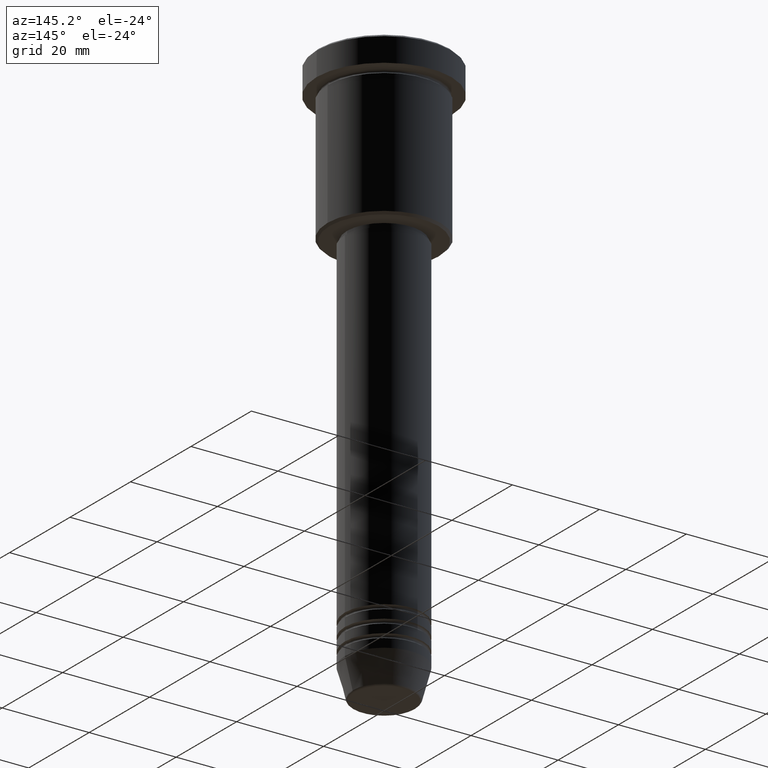
[diagram: clean part render]
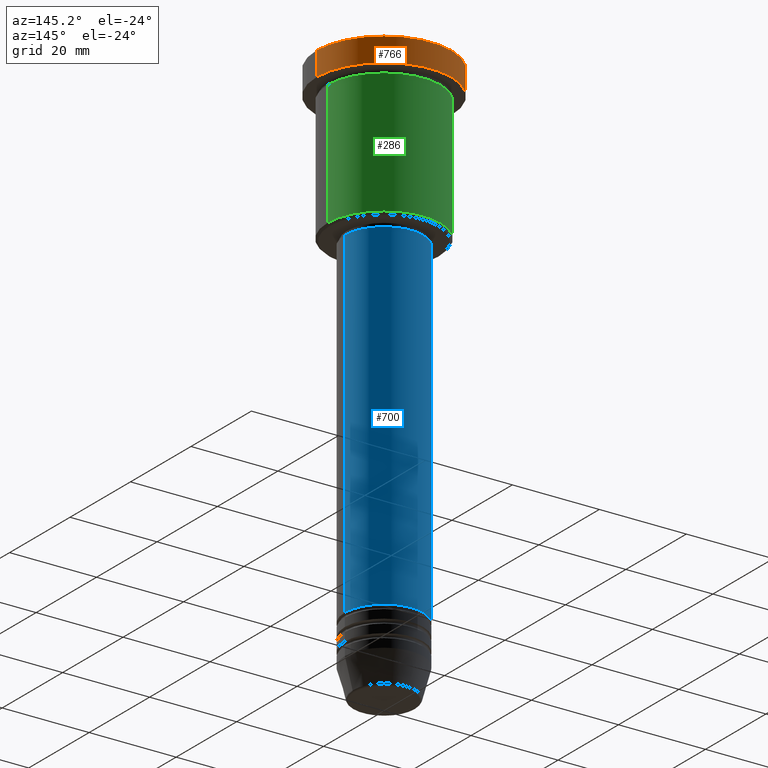
[diagram: same view with three faces highlighted in distinct colors, each labeled with its STEP entity id]
A machine part, auxiliary view with three faces highlighted in distinct colors.
Their STEP definitions:

[orange] entity #766 — the highlighted cylindrical surface (partial cylindrical patch) has radius 15.5 mm, axis along (-0, -0, 1).
#1 = EDGE_CURVE ( 'NONE', #402, #151, #393, .T. ) ;
#6 = AXIS2_PLACEMENT_3D ( 'NONE', #35, #400, #753 ) ;
#35 = CARTESIAN_POINT ( 'NONE',  ( 0.000000000000000000, 0.000000000000000000, -5.999999999999995559 ) ) ;
#45 = AXIS2_PLACEMENT_3D ( 'NONE', #165, #238, #687 ) ;
#89 = VECTOR ( 'NONE', #440, 1000.000000000000000 ) ;
#92 = CARTESIAN_POINT ( 'NONE',  ( -15.50000000000000000, 1.898202538678397557E-15, -5.999999999999995559 ) ) ;
#151 = VERTEX_POINT ( 'NONE', #546 ) ;
#165 = CARTESIAN_POINT ( 'NONE',  ( 0.000000000000000000, 0.000000000000000000, 0.000000000000000000 ) ) ;
#187 = ORIENTED_EDGE ( 'NONE', *, *, #638, .T. ) ;
#238 = DIRECTION ( 'NONE',  ( -0.000000000000000000, -0.000000000000000000, 1.000000000000000000 ) ) ;
#309 = CARTESIAN_POINT ( 'NONE',  ( 0.000000000000000000, 0.000000000000000000, -0.4999999999999709677 ) ) ;
#333 = VECTOR ( 'NONE', #423, 1000.000000000000000 ) ;
#372 = VERTEX_POINT ( 'NONE', #932 ) ;
#393 = LINE ( 'NONE', #899, #333 ) ;
#400 = DIRECTION ( 'NONE',  ( -0.000000000000000000, -0.000000000000000000, 1.000000000000000000 ) ) ;
#402 = VERTEX_POINT ( 'NONE', #676 ) ;
#423 = DIRECTION ( 'NONE',  ( -0.000000000000000000, -0.000000000000000000, 1.000000000000000000 ) ) ;
#440 = DIRECTION ( 'NONE',  ( -0.000000000000000000, -0.000000000000000000, 1.000000000000000000 ) ) ;
#444 = ORIENTED_EDGE ( 'NONE', *, *, #728, .T. ) ;
#485 = EDGE_LOOP ( 'NONE', ( #444, #1131, #187, #665 ) ) ;
#524 = CIRCLE ( 'NONE', #6, 15.50000000000000000 ) ;
#546 = CARTESIAN_POINT ( 'NONE',  ( 15.50000000000000000, 0.000000000000000000, -0.4999999999999709677 ) ) ;
#570 = FACE_OUTER_BOUND ( 'NONE', #485, .T. ) ;
#578 = DIRECTION ( 'NONE',  ( 1.000000000000000000, 0.000000000000000000, 0.000000000000000000 ) ) ;
#581 = LINE ( 'NONE', #895, #89 ) ;
#584 = DIRECTION ( 'NONE',  ( 0.000000000000000000, 0.000000000000000000, -1.000000000000000000 ) ) ;
#638 = EDGE_CURVE ( 'NONE', #372, #151, #1007, .T. ) ;
#665 = ORIENTED_EDGE ( 'NONE', *, *, #1, .F. ) ;
#676 = CARTESIAN_POINT ( 'NONE',  ( 15.50000000000000000, 0.000000000000000000, -5.999999999999995559 ) ) ;
#687 = DIRECTION ( 'NONE',  ( 1.000000000000000000, 0.000000000000000000, 0.000000000000000000 ) ) ;
#728 = EDGE_CURVE ( 'NONE', #402, #1181, #524, .T. ) ;
#753 = DIRECTION ( 'NONE',  ( 1.000000000000000000, 0.000000000000000000, 0.000000000000000000 ) ) ;
#766 = ADVANCED_FACE ( 'NONE', ( #570 ), #1025, .T. ) ;
#895 = CARTESIAN_POINT ( 'NONE',  ( -15.50000000000000000, 1.898202538678397557E-15, 0.000000000000000000 ) ) ;
#899 = CARTESIAN_POINT ( 'NONE',  ( 15.50000000000000000, 0.000000000000000000, 0.000000000000000000 ) ) ;
#932 = CARTESIAN_POINT ( 'NONE',  ( -15.50000000000000000, 1.898202538678397557E-15, -0.4999999999999709677 ) ) ;
#1007 = CIRCLE ( 'NONE', #1174, 15.50000000000000000 ) ;
#1025 = CYLINDRICAL_SURFACE ( 'NONE', #45, 15.50000000000000000 ) ;
#1131 = ORIENTED_EDGE ( 'NONE', *, *, #1173, .T. ) ;
#1173 = EDGE_CURVE ( 'NONE', #1181, #372, #581, .T. ) ;
#1174 = AXIS2_PLACEMENT_3D ( 'NONE', #309, #584, #578 ) ;
#1181 = VERTEX_POINT ( 'NONE', #92 ) ;

[blue] entity #700 — the highlighted cylindrical surface (partial cylindrical patch) has radius 9 mm, axis along (-0, -0, 1).
#2 = EDGE_LOOP ( 'NONE', ( #809, #558, #826, #180 ) ) ;
#42 = CARTESIAN_POINT ( 'NONE',  ( 0.000000000000000000, 0.000000000000000000, -114.9999999999999574 ) ) ;
#57 = CARTESIAN_POINT ( 'NONE',  ( -9.000000000000000000, 1.102182119232617714E-15, -37.00000000000000000 ) ) ;
#66 = CIRCLE ( 'NONE', #868, 9.000000000000000000 ) ;
#74 = CARTESIAN_POINT ( 'NONE',  ( -9.000000000000000000, 1.102182119232617714E-15, -114.9999999999999574 ) ) ;
#102 = VECTOR ( 'NONE', #710, 1000.000000000000000 ) ;
#122 = DIRECTION ( 'NONE',  ( 1.000000000000000000, 0.000000000000000000, 0.000000000000000000 ) ) ;
#128 = EDGE_CURVE ( 'NONE', #457, #884, #800, .T. ) ;
#133 = FACE_OUTER_BOUND ( 'NONE', #2, .T. ) ;
#180 = ORIENTED_EDGE ( 'NONE', *, *, #226, .F. ) ;
#206 = CARTESIAN_POINT ( 'NONE',  ( 0.000000000000000000, 0.000000000000000000, 0.000000000000000000 ) ) ;
#226 = EDGE_CURVE ( 'NONE', #836, #721, #465, .T. ) ;
#243 = AXIS2_PLACEMENT_3D ( 'NONE', #42, #417, #774 ) ;
#323 = DIRECTION ( 'NONE',  ( 1.000000000000000000, 0.000000000000000000, 0.000000000000000000 ) ) ;
#350 = CARTESIAN_POINT ( 'NONE',  ( 9.000000000000000000, 0.000000000000000000, -114.9999999999999574 ) ) ;
#358 = VECTOR ( 'NONE', #926, 1000.000000000000000 ) ;
#364 = EDGE_CURVE ( 'NONE', #721, #884, #66, .T. ) ;
#417 = DIRECTION ( 'NONE',  ( -0.000000000000000000, -0.000000000000000000, 1.000000000000000000 ) ) ;
#449 = CIRCLE ( 'NONE', #243, 9.000000000000000000 ) ;
#457 = VERTEX_POINT ( 'NONE', #74 ) ;
#465 = LINE ( 'NONE', #1102, #358 ) ;
#558 = ORIENTED_EDGE ( 'NONE', *, *, #128, .T. ) ;
#700 = ADVANCED_FACE ( 'NONE', ( #133 ), #863, .T. ) ;
#710 = DIRECTION ( 'NONE',  ( -0.000000000000000000, -0.000000000000000000, 1.000000000000000000 ) ) ;
#721 = VERTEX_POINT ( 'NONE', #939 ) ;
#744 = EDGE_CURVE ( 'NONE', #836, #457, #449, .T. ) ;
#774 = DIRECTION ( 'NONE',  ( 1.000000000000000000, 0.000000000000000000, 0.000000000000000000 ) ) ;
#800 = LINE ( 'NONE', #1163, #102 ) ;
#809 = ORIENTED_EDGE ( 'NONE', *, *, #744, .T. ) ;
#816 = AXIS2_PLACEMENT_3D ( 'NONE', #206, #933, #122 ) ;
#826 = ORIENTED_EDGE ( 'NONE', *, *, #364, .F. ) ;
#836 = VERTEX_POINT ( 'NONE', #350 ) ;
#843 = DIRECTION ( 'NONE',  ( -0.000000000000000000, -0.000000000000000000, 1.000000000000000000 ) ) ;
#863 = CYLINDRICAL_SURFACE ( 'NONE', #816, 9.000000000000000000 ) ;
#868 = AXIS2_PLACEMENT_3D ( 'NONE', #1118, #843, #323 ) ;
#884 = VERTEX_POINT ( 'NONE', #57 ) ;
#926 = DIRECTION ( 'NONE',  ( -0.000000000000000000, -0.000000000000000000, 1.000000000000000000 ) ) ;
#933 = DIRECTION ( 'NONE',  ( -0.000000000000000000, -0.000000000000000000, 1.000000000000000000 ) ) ;
#939 = CARTESIAN_POINT ( 'NONE',  ( 9.000000000000000000, 0.000000000000000000, -37.00000000000000000 ) ) ;
#1102 = CARTESIAN_POINT ( 'NONE',  ( 9.000000000000000000, 0.000000000000000000, 0.000000000000000000 ) ) ;
#1118 = CARTESIAN_POINT ( 'NONE',  ( 0.000000000000000000, 0.000000000000000000, -37.00000000000000000 ) ) ;
#1163 = CARTESIAN_POINT ( 'NONE',  ( -9.000000000000000000, 1.102182119232617714E-15, 0.000000000000000000 ) ) ;

[green] entity #286 — the highlighted cylindrical surface (partial cylindrical patch) has radius 13 mm, axis along (-0, -0, 1).
#16 = ORIENTED_EDGE ( 'NONE', *, *, #852, .F. ) ;
#76 = EDGE_LOOP ( 'NONE', ( #1145, #1107, #274, #16 ) ) ;
#90 = DIRECTION ( 'NONE',  ( -0.000000000000000000, -0.000000000000000000, 1.000000000000000000 ) ) ;
#95 = DIRECTION ( 'NONE',  ( 1.000000000000000000, 0.000000000000000000, 0.000000000000000000 ) ) ;
#115 = VERTEX_POINT ( 'NONE', #154 ) ;
#120 = CARTESIAN_POINT ( 'NONE',  ( -13.00000000000000000, 1.592040838891559095E-15, 0.000000000000000000 ) ) ;
#138 = CIRCLE ( 'NONE', #1084, 13.00000000000000000 ) ;
#154 = CARTESIAN_POINT ( 'NONE',  ( -13.00000000000000000, 1.592040838891559095E-15, -35.49999999999999289 ) ) ;
#231 = DIRECTION ( 'NONE',  ( -1.000000000000000000, 0.000000000000000000, 0.000000000000000000 ) ) ;
#249 = LINE ( 'NONE', #352, #432 ) ;
#272 = CARTESIAN_POINT ( 'NONE',  ( 0.000000000000000000, 0.000000000000000000, -6.999999999999995559 ) ) ;
#274 = ORIENTED_EDGE ( 'NONE', *, *, #1101, .F. ) ;
#279 = FACE_OUTER_BOUND ( 'NONE', #76, .T. ) ;
#286 = ADVANCED_FACE ( 'NONE', ( #279 ), #627, .T. ) ;
#331 = VERTEX_POINT ( 'NONE', #582 ) ;
#346 = EDGE_CURVE ( 'NONE', #115, #331, #408, .T. ) ;
#352 = CARTESIAN_POINT ( 'NONE',  ( 13.00000000000000000, 0.000000000000000000, 0.000000000000000000 ) ) ;
#408 = LINE ( 'NONE', #120, #616 ) ;
#432 = VECTOR ( 'NONE', #514, 1000.000000000000000 ) ;
#488 = CARTESIAN_POINT ( 'NONE',  ( 13.00000000000000000, 0.000000000000000000, -6.999999999999995559 ) ) ;
#514 = DIRECTION ( 'NONE',  ( -0.000000000000000000, -0.000000000000000000, 1.000000000000000000 ) ) ;
#582 = CARTESIAN_POINT ( 'NONE',  ( -13.00000000000000000, 1.592040838891559095E-15, -6.999999999999995559 ) ) ;
#609 = CARTESIAN_POINT ( 'NONE',  ( 0.000000000000000000, 0.000000000000000000, -35.49999999999999289 ) ) ;
#616 = VECTOR ( 'NONE', #756, 1000.000000000000000 ) ;
#627 = CYLINDRICAL_SURFACE ( 'NONE', #768, 13.00000000000000000 ) ;
#630 = DIRECTION ( 'NONE',  ( 1.000000000000000000, 0.000000000000000000, 0.000000000000000000 ) ) ;
#637 = AXIS2_PLACEMENT_3D ( 'NONE', #609, #1162, #231 ) ;
#662 = CARTESIAN_POINT ( 'NONE',  ( 13.00000000000000000, 0.000000000000000000, -35.49999999999999289 ) ) ;
#730 = DIRECTION ( 'NONE',  ( -0.000000000000000000, -0.000000000000000000, 1.000000000000000000 ) ) ;
#756 = DIRECTION ( 'NONE',  ( -0.000000000000000000, -0.000000000000000000, 1.000000000000000000 ) ) ;
#768 = AXIS2_PLACEMENT_3D ( 'NONE', #911, #90, #95 ) ;
#769 = CIRCLE ( 'NONE', #637, 13.00000000000000000 ) ;
#825 = EDGE_CURVE ( 'NONE', #1121, #115, #769, .T. ) ;
#852 = EDGE_CURVE ( 'NONE', #1121, #914, #249, .T. ) ;
#911 = CARTESIAN_POINT ( 'NONE',  ( 0.000000000000000000, 0.000000000000000000, 0.000000000000000000 ) ) ;
#914 = VERTEX_POINT ( 'NONE', #488 ) ;
#1084 = AXIS2_PLACEMENT_3D ( 'NONE', #272, #730, #630 ) ;
#1101 = EDGE_CURVE ( 'NONE', #914, #331, #138, .T. ) ;
#1107 = ORIENTED_EDGE ( 'NONE', *, *, #346, .T. ) ;
#1121 = VERTEX_POINT ( 'NONE', #662 ) ;
#1145 = ORIENTED_EDGE ( 'NONE', *, *, #825, .T. ) ;
#1162 = DIRECTION ( 'NONE',  ( -0.000000000000000000, -0.000000000000000000, 1.000000000000000000 ) ) ;